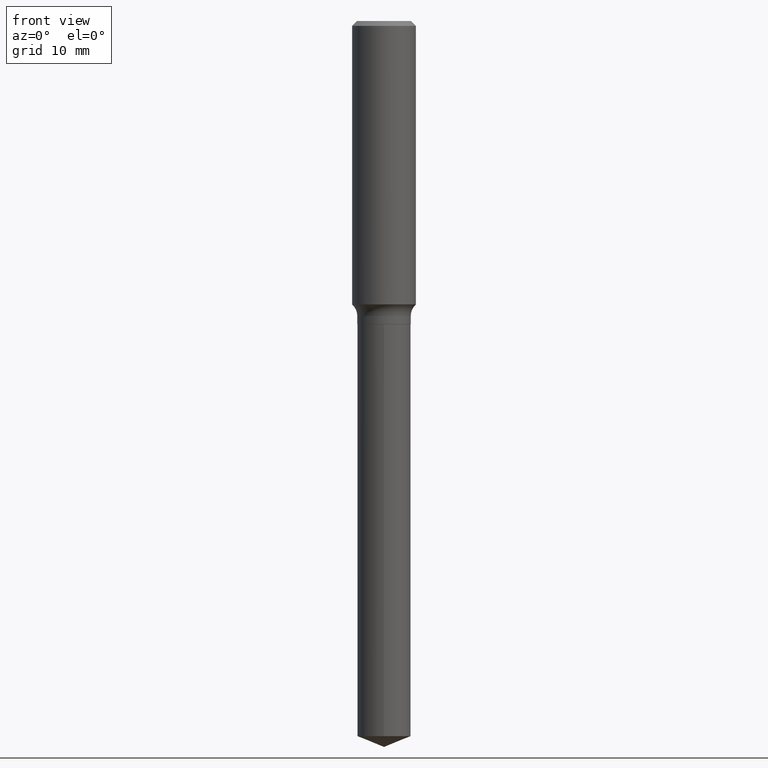
[diagram: clean part render]
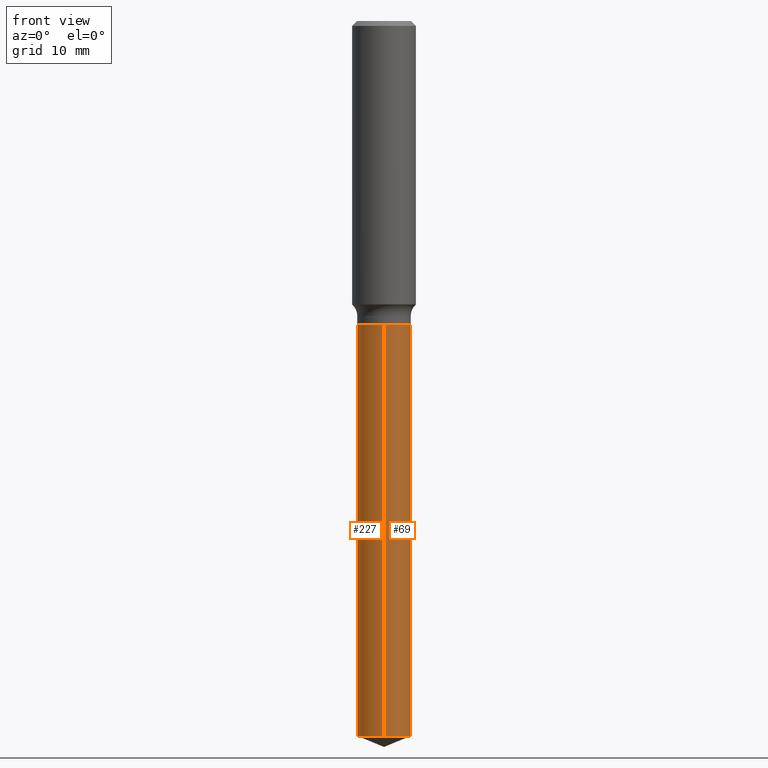
[diagram: same view with one multi-face feature highlighted, each face labeled with its STEP entity id]
A machine part, front view. The highlighted faces form ONE feature: a constant-radius fillet chain: 2 tangent blend faces with common blend radius 3.3503 mm. The faces share edges in the B-rep.
Their STEP definitions:
[1] entity #227 (Cylinder):
#11 = ORIENTED_EDGE ( 'NONE', *, *, #38, .T. ) ;
#22 = CIRCLE ( 'NONE', #223, 0.1318999999999999895 ) ;
#38 = EDGE_CURVE ( 'NONE', #418, #290, #119, .T. ) ;
#40 = DIRECTION ( 'NONE',  ( -2.445445601509706497E-29, 3.491514569259089389E-15, 1.000000000000000000 ) ) ;
#88 = AXIS2_PLACEMENT_3D ( 'NONE', #436, #466, #201 ) ;
#107 = ORIENTED_EDGE ( 'NONE', *, *, #236, .F. ) ;
#118 = CYLINDRICAL_SURFACE ( 'NONE', #434, 0.1318999999999999895 ) ;
#119 = LINE ( 'NONE', #151, #220 ) ;
#122 = ORIENTED_EDGE ( 'NONE', *, *, #374, .T. ) ;
#135 = LINE ( 'NONE', #211, #253 ) ;
#140 = CARTESIAN_POINT ( 'NONE',  ( 9.372058684676580562E-16, 0.1318999999999876382, -3.529708940812343432 ) ) ;
#151 = CARTESIAN_POINT ( 'NONE',  ( -9.210527771867817330E-16, -0.1319000000000052075, -1.496399999999999730 ) ) ;
#153 = DIRECTION ( 'NONE',  ( -2.445445601509706497E-29, 3.491514569259089389E-15, 1.000000000000000000 ) ) ;
#182 = CARTESIAN_POINT ( 'NONE',  ( 3.659399521575438742E-29, -5.224652675444883351E-15, -1.496400000000000174 ) ) ;
#201 = DIRECTION ( 'NONE',  ( -6.982962677686265922E-15, -1.000000000000000000, 4.142301734138382417E-15 ) ) ;
#211 = CARTESIAN_POINT ( 'NONE',  ( 9.372058684676085552E-16, 0.1318999999999947437, -1.496400000000000841 ) ) ;
#220 = VECTOR ( 'NONE', #40, 39.37007874015748143 ) ;
#223 = AXIS2_PLACEMENT_3D ( 'NONE', #182, #153, #459 ) ;
#227 = ADVANCED_FACE ( 'NONE', ( #361 ), #118, .T. ) ;
#236 = EDGE_CURVE ( 'NONE', #444, #290, #22, .T. ) ;
#253 = VECTOR ( 'NONE', #479, 39.37007874015748143 ) ;
#289 = CARTESIAN_POINT ( 'NONE',  ( -9.210527771867320348E-16, -0.1319000000000122852, -3.529708940812342099 ) ) ;
#290 = VERTEX_POINT ( 'NONE', #468 ) ;
#294 = EDGE_LOOP ( 'NONE', ( #446, #122, #11, #107 ) ) ;
#312 = DIRECTION ( 'NONE',  ( -6.982962677686265922E-15, -1.000000000000000000, 4.142301734138382417E-15 ) ) ;
#361 = FACE_OUTER_BOUND ( 'NONE', #294, .T. ) ;
#374 = EDGE_CURVE ( 'NONE', #467, #418, #491, .T. ) ;
#403 = CARTESIAN_POINT ( 'NONE',  ( 9.372058684676584506E-16, 0.1318999999999947437, -1.496400000000000841 ) ) ;
#418 = VERTEX_POINT ( 'NONE', #289 ) ;
#424 = CARTESIAN_POINT ( 'NONE',  ( 3.659399521575438742E-29, -5.224652675444883351E-15, -1.496400000000000174 ) ) ;
#427 = DIRECTION ( 'NONE',  ( -2.445445601509706497E-29, 3.491514569259089389E-15, 1.000000000000000000 ) ) ;
#434 = AXIS2_PLACEMENT_3D ( 'NONE', #424, #427, #312 ) ;
#436 = CARTESIAN_POINT ( 'NONE',  ( 8.631745927395342722E-29, -1.232398046609594419E-14, -3.529708940812342988 ) ) ;
#444 = VERTEX_POINT ( 'NONE', #403 ) ;
#446 = ORIENTED_EDGE ( 'NONE', *, *, #486, .F. ) ;
#459 = DIRECTION ( 'NONE',  ( -6.982962677686265922E-15, -1.000000000000000000, 4.142301734138382417E-15 ) ) ;
#466 = DIRECTION ( 'NONE',  ( -2.445445601509706497E-29, 3.491514569259089389E-15, 1.000000000000000000 ) ) ;
#467 = VERTEX_POINT ( 'NONE', #140 ) ;
#468 = CARTESIAN_POINT ( 'NONE',  ( -9.210527771867817330E-16, -0.1319000000000052075, -1.496399999999999730 ) ) ;
#479 = DIRECTION ( 'NONE',  ( -2.445445601509706497E-29, 3.491514569259089389E-15, 1.000000000000000000 ) ) ;
#486 = EDGE_CURVE ( 'NONE', #467, #444, #135, .T. ) ;
#491 = CIRCLE ( 'NONE', #88, 0.1318999999999999895 ) ;
[2] entity #69 (Cylinder):
#8 = CARTESIAN_POINT ( 'NONE',  ( 8.631745927395342722E-29, -1.232398046609594419E-14, -3.529708940812342988 ) ) ;
#38 = EDGE_CURVE ( 'NONE', #418, #290, #119, .T. ) ;
#40 = DIRECTION ( 'NONE',  ( -2.445445601509706497E-29, 3.491514569259089389E-15, 1.000000000000000000 ) ) ;
#61 = ORIENTED_EDGE ( 'NONE', *, *, #282, .T. ) ;
#65 = AXIS2_PLACEMENT_3D ( 'NONE', #8, #332, #281 ) ;
#69 = ADVANCED_FACE ( 'NONE', ( #315 ), #462, .T. ) ;
#93 = EDGE_CURVE ( 'NONE', #290, #444, #194, .T. ) ;
#119 = LINE ( 'NONE', #151, #220 ) ;
#133 = DIRECTION ( 'NONE',  ( -2.445445601509706497E-29, 3.491514569259089389E-15, 1.000000000000000000 ) ) ;
#135 = LINE ( 'NONE', #211, #253 ) ;
#140 = CARTESIAN_POINT ( 'NONE',  ( 9.372058684676580562E-16, 0.1318999999999876382, -3.529708940812343432 ) ) ;
#151 = CARTESIAN_POINT ( 'NONE',  ( -9.210527771867817330E-16, -0.1319000000000052075, -1.496399999999999730 ) ) ;
#158 = DIRECTION ( 'NONE',  ( -2.445445601509706497E-29, 3.491514569259089389E-15, 1.000000000000000000 ) ) ;
#194 = CIRCLE ( 'NONE', #283, 0.1318999999999999895 ) ;
#211 = CARTESIAN_POINT ( 'NONE',  ( 9.372058684676085552E-16, 0.1318999999999947437, -1.496400000000000841 ) ) ;
#220 = VECTOR ( 'NONE', #40, 39.37007874015748143 ) ;
#222 = ORIENTED_EDGE ( 'NONE', *, *, #93, .F. ) ;
#253 = VECTOR ( 'NONE', #479, 39.37007874015748143 ) ;
#273 = EDGE_LOOP ( 'NONE', ( #61, #322, #222, #382 ) ) ;
#281 = DIRECTION ( 'NONE',  ( -6.982962677686265922E-15, -1.000000000000000000, 4.142301734138382417E-15 ) ) ;
#282 = EDGE_CURVE ( 'NONE', #418, #467, #375, .T. ) ;
#283 = AXIS2_PLACEMENT_3D ( 'NONE', #323, #133, #442 ) ;
#289 = CARTESIAN_POINT ( 'NONE',  ( -9.210527771867320348E-16, -0.1319000000000122852, -3.529708940812342099 ) ) ;
#290 = VERTEX_POINT ( 'NONE', #468 ) ;
#315 = FACE_OUTER_BOUND ( 'NONE', #273, .T. ) ;
#322 = ORIENTED_EDGE ( 'NONE', *, *, #486, .T. ) ;
#323 = CARTESIAN_POINT ( 'NONE',  ( 3.659399521575438742E-29, -5.224652675444883351E-15, -1.496400000000000174 ) ) ;
#332 = DIRECTION ( 'NONE',  ( -2.445445601509706497E-29, 3.491514569259089389E-15, 1.000000000000000000 ) ) ;
#360 = CARTESIAN_POINT ( 'NONE',  ( 3.659399521575438742E-29, -5.224652675444883351E-15, -1.496400000000000174 ) ) ;
#375 = CIRCLE ( 'NONE', #65, 0.1318999999999999895 ) ;
#382 = ORIENTED_EDGE ( 'NONE', *, *, #38, .F. ) ;
#403 = CARTESIAN_POINT ( 'NONE',  ( 9.372058684676584506E-16, 0.1318999999999947437, -1.496400000000000841 ) ) ;
#418 = VERTEX_POINT ( 'NONE', #289 ) ;
#442 = DIRECTION ( 'NONE',  ( -6.982962677686265922E-15, -1.000000000000000000, 4.142301734138382417E-15 ) ) ;
#444 = VERTEX_POINT ( 'NONE', #403 ) ;
#453 = DIRECTION ( 'NONE',  ( -6.982962677686265922E-15, -1.000000000000000000, 4.142301734138382417E-15 ) ) ;
#457 = AXIS2_PLACEMENT_3D ( 'NONE', #360, #158, #453 ) ;
#462 = CYLINDRICAL_SURFACE ( 'NONE', #457, 0.1318999999999999895 ) ;
#467 = VERTEX_POINT ( 'NONE', #140 ) ;
#468 = CARTESIAN_POINT ( 'NONE',  ( -9.210527771867817330E-16, -0.1319000000000052075, -1.496399999999999730 ) ) ;
#479 = DIRECTION ( 'NONE',  ( -2.445445601509706497E-29, 3.491514569259089389E-15, 1.000000000000000000 ) ) ;
#486 = EDGE_CURVE ( 'NONE', #467, #444, #135, .T. ) ;